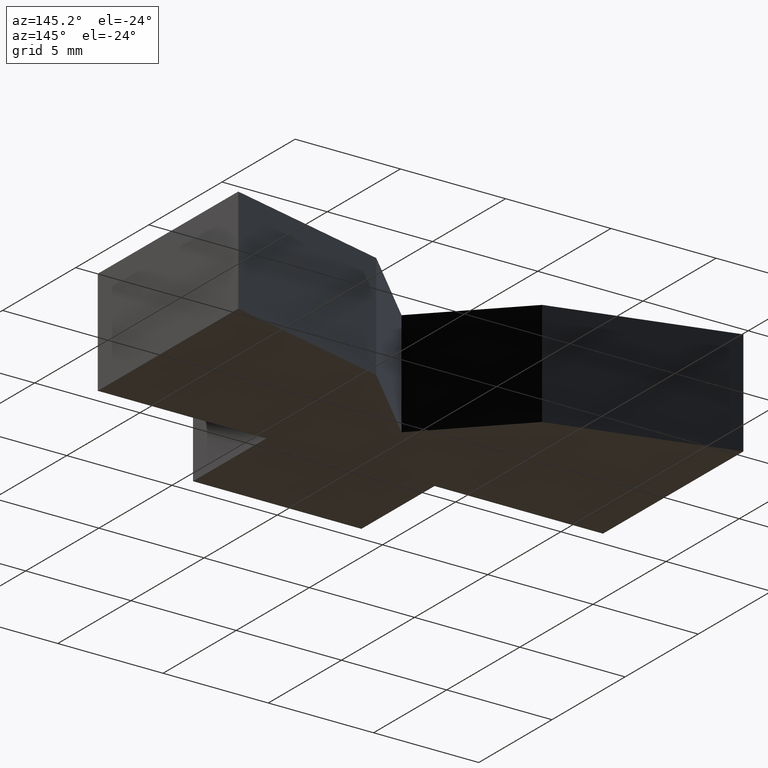
[diagram: clean part render]
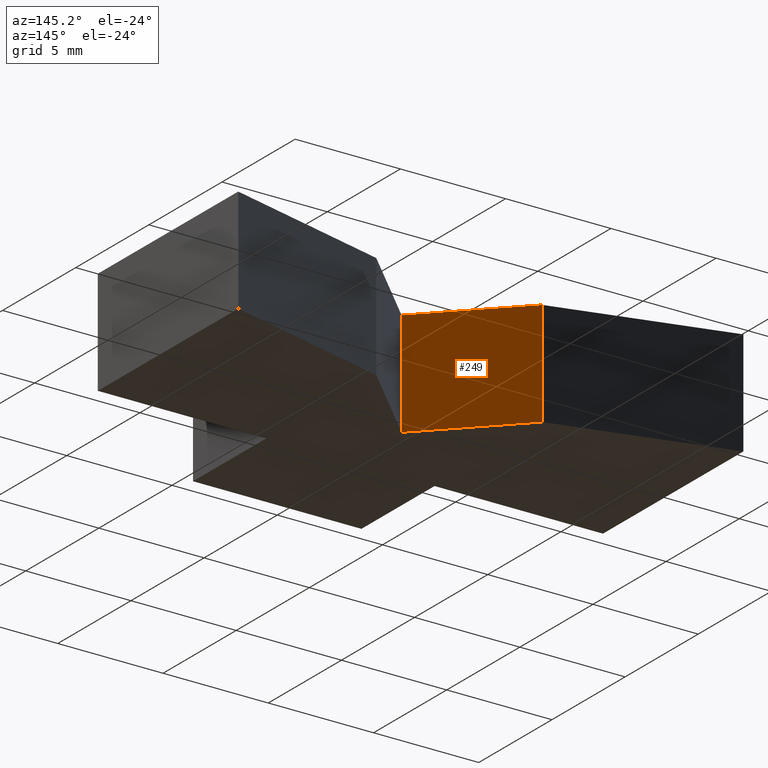
[diagram: same view with one face highlighted and labeled with its STEP entity id]
A machine part, auxiliary view. The second image highlights one B-rep face of the part: STEP entity #249.
In plain terms, the highlighted planar face has unit normal (0.7071, 0.7071, 0).
Its self-contained STEP definition (entity closure, byte-faithful):
#23=FACE_OUTER_BOUND('',#36,.T.);
#36=EDGE_LOOP('',(#198,#199,#200,#201));
#50=LINE('',#372,#83);
#65=LINE('',#401,#98);
#66=LINE('',#404,#99);
#67=LINE('',#405,#100);
#83=VECTOR('',#303,10.);
#98=VECTOR('',#330,10.);
#99=VECTOR('',#333,10.);
#100=VECTOR('',#334,10.);
#116=VERTEX_POINT('',#369);
#117=VERTEX_POINT('',#371);
#125=VERTEX_POINT('',#399);
#126=VERTEX_POINT('',#403);
#138=EDGE_CURVE('',#117,#116,#50,.T.);
#153=EDGE_CURVE('',#116,#125,#65,.T.);
#154=EDGE_CURVE('',#125,#126,#66,.T.);
#155=EDGE_CURVE('',#117,#126,#67,.T.);
#198=ORIENTED_EDGE('',*,*,#154,.T.);
#199=ORIENTED_EDGE('',*,*,#155,.F.);
#200=ORIENTED_EDGE('',*,*,#138,.T.);
#201=ORIENTED_EDGE('',*,*,#153,.T.);
#236=PLANE('',#285);
#249=ADVANCED_FACE('',(#23),#236,.T.);
#285=AXIS2_PLACEMENT_3D('',#402,#331,#332);
#303=DIRECTION('',(-0.707106781186547,0.707106781186548,0.));
#330=DIRECTION('',(0.,0.,1.));
#331=DIRECTION('center_axis',(0.707106781186548,0.707106781186547,0.));
#332=DIRECTION('ref_axis',(0.,0.,-1.));
#333=DIRECTION('',(0.707106781186547,-0.707106781186548,0.));
#334=DIRECTION('',(0.,0.,1.));
#369=CARTESIAN_POINT('',(-3.94045011767181,7.44045011767182,-2.5));
#371=CARTESIAN_POINT('',(0.,3.5,-2.5));
#372=CARTESIAN_POINT('',(0.,3.5,-2.5));
#399=CARTESIAN_POINT('',(-3.94045011767181,7.44045011767182,2.5));
#401=CARTESIAN_POINT('',(-3.94045011767181,7.44045011767182,0.));
#402=CARTESIAN_POINT('Origin',(-3.94045011767181,7.44045011767182,0.));
#403=CARTESIAN_POINT('',(0.,3.5,2.5));
#404=CARTESIAN_POINT('',(0.,3.5,2.5));
#405=CARTESIAN_POINT('',(0.,3.5,0.));